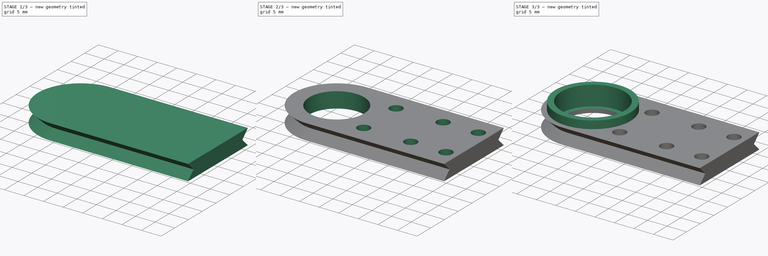
[diagram: build sequence overview — one tinted view per stage of 3, left to right]
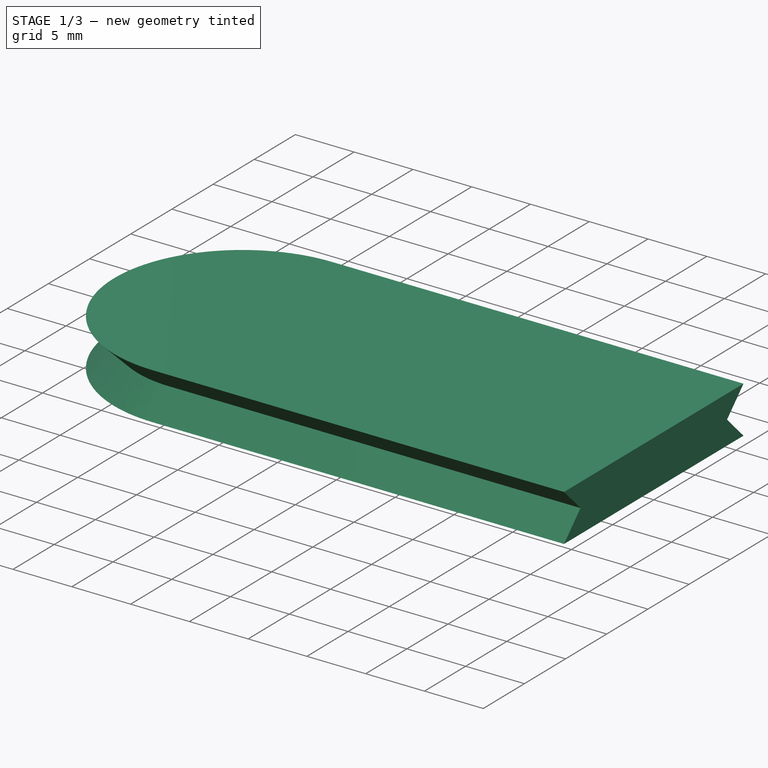
[diagram: stage 1 of 3 — iso view after this stage's code; geometry added in this stage tinted green]
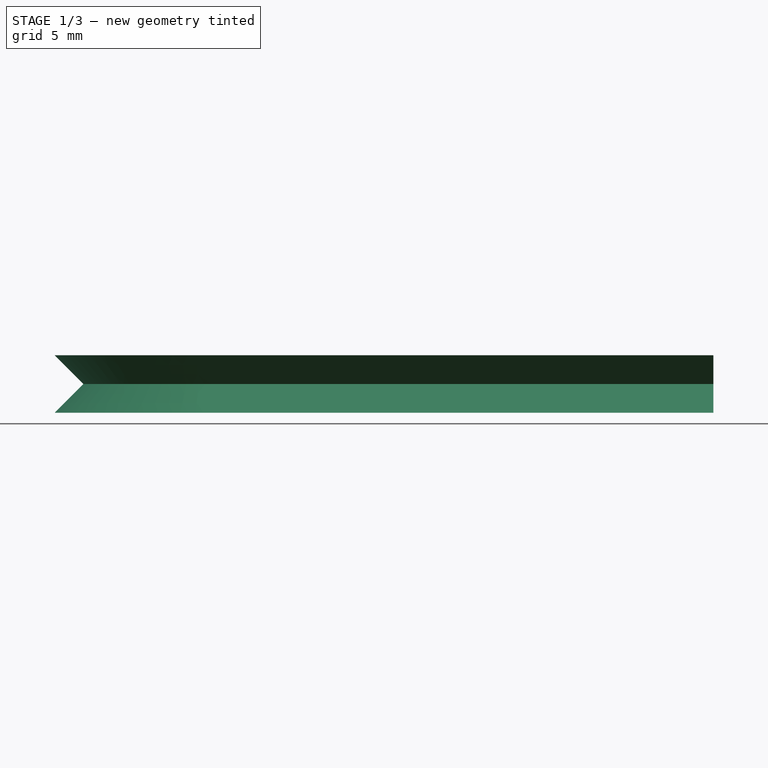
[diagram: stage 1 of 3 — front view after this stage's code; geometry added in this stage tinted green]
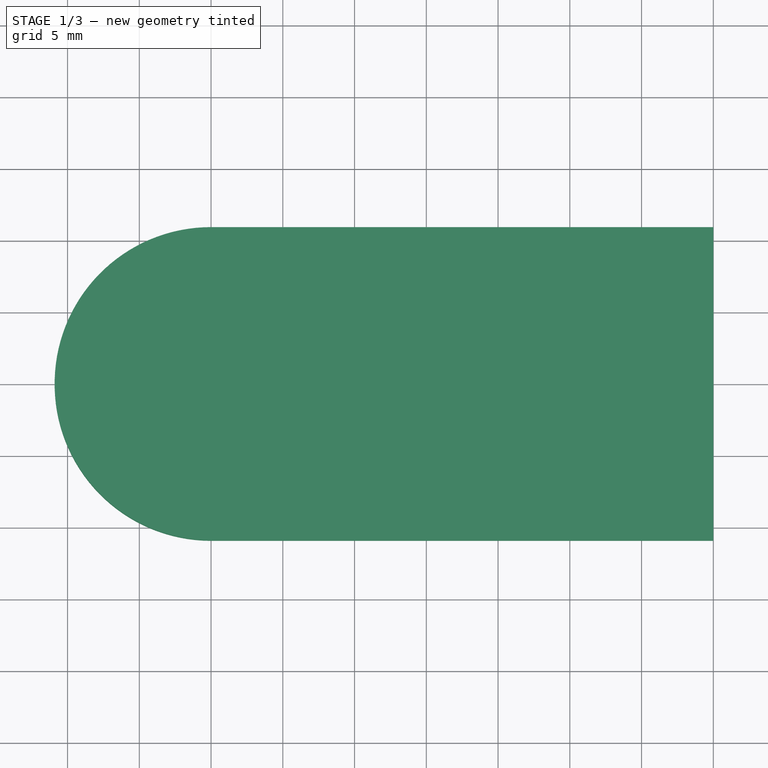
[diagram: stage 1 of 3 — top view after this stage's code; geometry added in this stage tinted green]
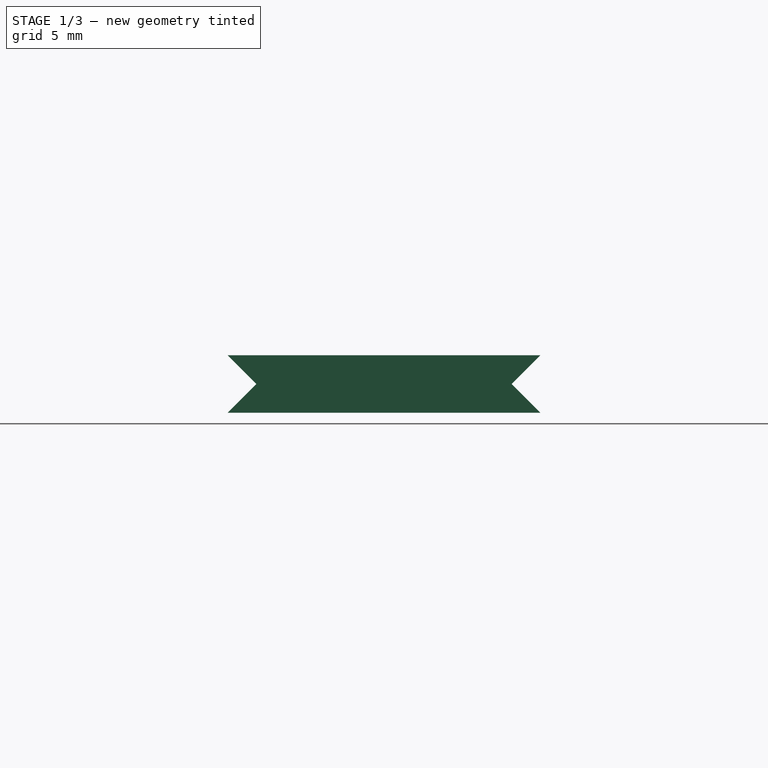
[diagram: stage 1 of 3 — right view after this stage's code; geometry added in this stage tinted green]
FCSTD DOCUMENT  (FreeCAD 0.18R14014 (Git))
Label: IdlerPart_625zz
License: All rights reserved
LicenseURL: http://en.wikipedia.org/wiki/All_rights_reserved
objects: Sketcher::SketchObject×8, PartDesign::Pocket×3, PartDesign::Pad×2, PartDesign::Plane×2, PartDesign::AdditiveLoft×1, PartDesign::Body×1, App::Part×1
note: 23 computed .brp shape members not serialized (recipe doc carries the construction recipe); baked Part::Feature solids carry a one-line shape summary decoded from their .brp

FEATURE [Sketcher::SketchObject] Sketch  label="IB_BaseSketch"
  MapMode = 5
  Placement = pos=(0,0,0) rot=(0.57735,0.57735,0.57735;2.0944rad)
  Support = -> [YZ_Plane001]
  sketch-geometry (8):
    g0: LineSegment StartX=0 StartY=2 StartZ=0 EndX=-10.9 EndY=2 EndZ=0
    g1: LineSegment StartX=0 StartY=2 StartZ=0 EndX=10.9 EndY=2 EndZ=0
    g2: LineSegment StartX=10.9 StartY=2 StartZ=0 EndX=8.9 EndY=0 EndZ=0
    g3: LineSegment StartX=8.9 StartY=0 StartZ=0 EndX=10.9 EndY=-2 EndZ=0
    g4: LineSegment StartX=10.9 StartY=-2 StartZ=0 EndX=0 EndY=-2 EndZ=0
    g5: LineSegment StartX=0 StartY=-2 StartZ=0 EndX=-10.9 EndY=-2 EndZ=0
    g6: LineSegment StartX=-10.9 StartY=-2 StartZ=0 EndX=-8.9 EndY=0 EndZ=0
    g7: LineSegment StartX=-8.9 StartY=0 StartZ=0 EndX=-10.9 EndY=2 EndZ=0
  constraints (20):
    c: PointOnObject(g0,g-2)
    c: Horizontal(g0)
    c: Coincident(g1,g0)
    c: Horizontal(g1)
    c: Coincident(g2,g1)
    c: PointOnObject(g2,g-1)
    c: Coincident(g3,g2)
    c: Coincident(g4,g3)
    c: Coincident(g6,g5)
    c: Coincident(g7,g6)
    c: Coincident(g7,g0)
    c: Coincident(g4,g5)
    c: Symmetric(g4,g0,g-1)
    c: Symmetric(g1,g3,g-1)
    c: Symmetric(g0,g5,g-1)
    c: Symmetric(g2,g6,g-2)
    c: Distance(g2,g6) = 17.8
    c: Distance(g1,g0) = 21.8
    c: Distance(g0,g5) = 4
    c: Equal(g0,g1)
FEATURE [PartDesign::Pad] Pad  label="IB_BasePad"
  Length = 35
  Length2 = 100
  Placement = pos=(0,0,0) rot=(0.57735,0.57735,0.57735;2.0944rad)
  Profile = -> Sketch
  Type = 0
FEATURE [Sketcher::SketchObject] Sketch001  label="IB_ClipCenterSketch"
  ExternalGeometry = -> [Sketch]
  MapMode = 5
  Support = -> [XY_Plane001]
  sketch-geometry (2):
    g0: ArcOfCircle CenterX=0 CenterY=0 CenterZ=0 NormalX=0 NormalY=0 NormalZ=1 AngleXU=0 Radius=8.9 StartAngle=1.5708 EndAngle=4.71239
    g1: LineSegment StartX=0 StartY=8.9 StartZ=0 EndX=0 EndY=-8.9 EndZ=0
  constraints (5):
    c: Coincident(g0,g-1)
    c: Coincident(g0,g-3)
    c: PointOnObject(g0,g-2)
    c: Coincident(g1,g0)
    c: Coincident(g1,g0)
FEATURE [PartDesign::Plane] DatumPlane  label="IB_TopPlane"
  AttachmentOffset = pos=(0,0,2) rot=(0,0,1;0rad)
  MapMode = 5
  Placement = pos=(0,0,2) rot=(0,0,1;0rad)
  Support = -> [XY_Plane001]
FEATURE [PartDesign::Plane] DatumPlane001  label="IB_BottomPlane"
  AttachmentOffset = pos=(0,0,-2) rot=(0,0,1;0rad)
  MapMode = 5
  Placement = pos=(0,0,-2) rot=(0,0,1;0rad)
  Support = -> [XY_Plane001]
FEATURE [Sketcher::SketchObject] Sketch002  label="IB_ClipTopSketch"
  ExternalGeometry = -> [Sketch]
  MapMode = 5
  Placement = pos=(0,0,2) rot=(0,0,1;0rad)
  Support = -> [DatumPlane]
  sketch-geometry (2):
    g0: ArcOfCircle CenterX=0 CenterY=0 CenterZ=0 NormalX=0 NormalY=0 NormalZ=1 AngleXU=0 Radius=10.9 StartAngle=1.5708 EndAngle=4.71239
    g1: LineSegment StartX=0 StartY=10.9 StartZ=0 EndX=0 EndY=-10.9 EndZ=0
  constraints (5):
    c: Coincident(g0,g-1)
    c: Coincident(g0,g-3)
    c: PointOnObject(g0,g-2)
    c: Coincident(g1,g0)
    c: Coincident(g1,g0)
FEATURE [Sketcher::SketchObject] Sketch003  label="IB_ClipBottomSketch"
  ExternalGeometry = -> [Sketch]
  MapMode = 5
  Placement = pos=(0,0,-2) rot=(0,0,1;0rad)
  Support = -> [DatumPlane001]
  sketch-geometry (2):
    g0: ArcOfCircle CenterX=0 CenterY=0 CenterZ=0 NormalX=0 NormalY=0 NormalZ=1 AngleXU=0 Radius=10.9 StartAngle=1.5708 EndAngle=4.71239
    g1: LineSegment StartX=0 StartY=10.9 StartZ=0 EndX=0 EndY=-10.9 EndZ=0
  constraints (5):
    c: Coincident(g0,g-3)
    c: PointOnObject(g0,g-2)
    c: Coincident(g0,g-1)
    c: Coincident(g1,g0)
    c: Coincident(g1,g0)
FEATURE [PartDesign::AdditiveLoft] AdditiveLoft  label="ClipLoft"
  BaseFeature = -> Pad
  Closed = false
  Placement = pos=(0,0,0) rot=(0.57735,0.57735,0.57735;2.0944rad)
  Profile = -> Sketch002
  Ruled = true
  Sections = -> [Sketch001,Sketch003]
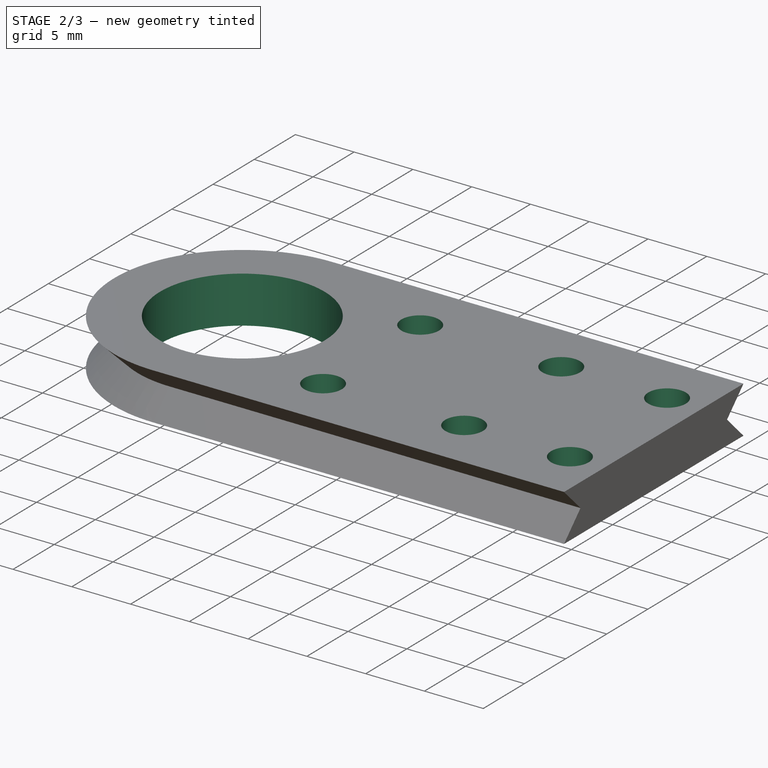
[diagram: stage 2 of 3 — iso view after this stage's code; geometry added in this stage tinted green]
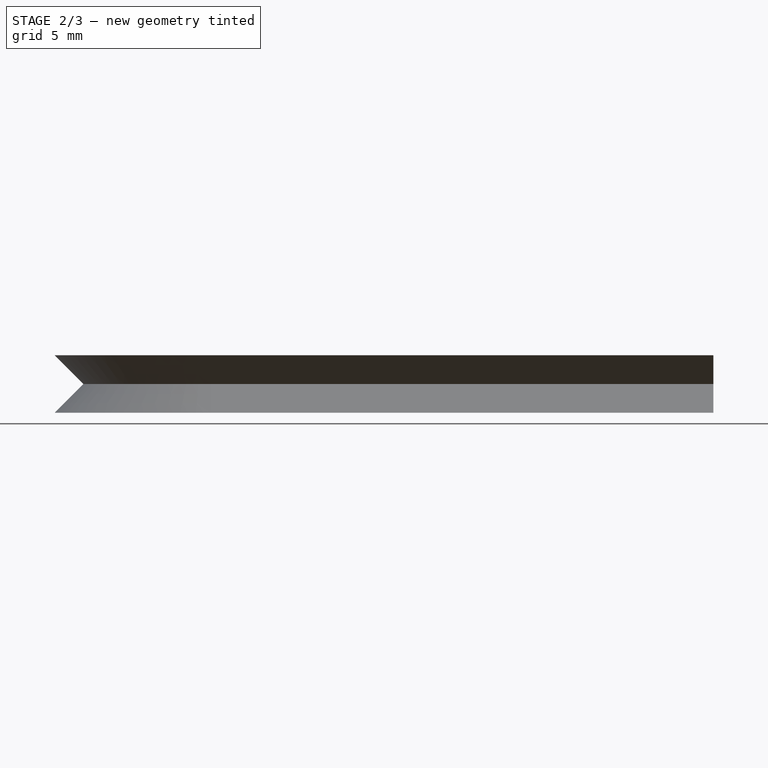
[diagram: stage 2 of 3 — front view after this stage's code; geometry added in this stage tinted green]
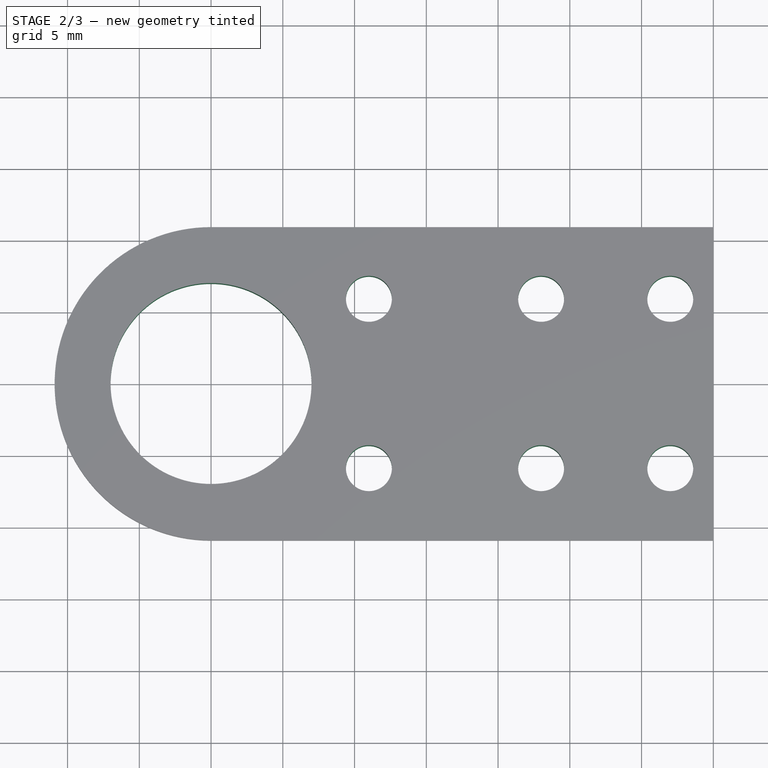
[diagram: stage 2 of 3 — top view after this stage's code; geometry added in this stage tinted green]
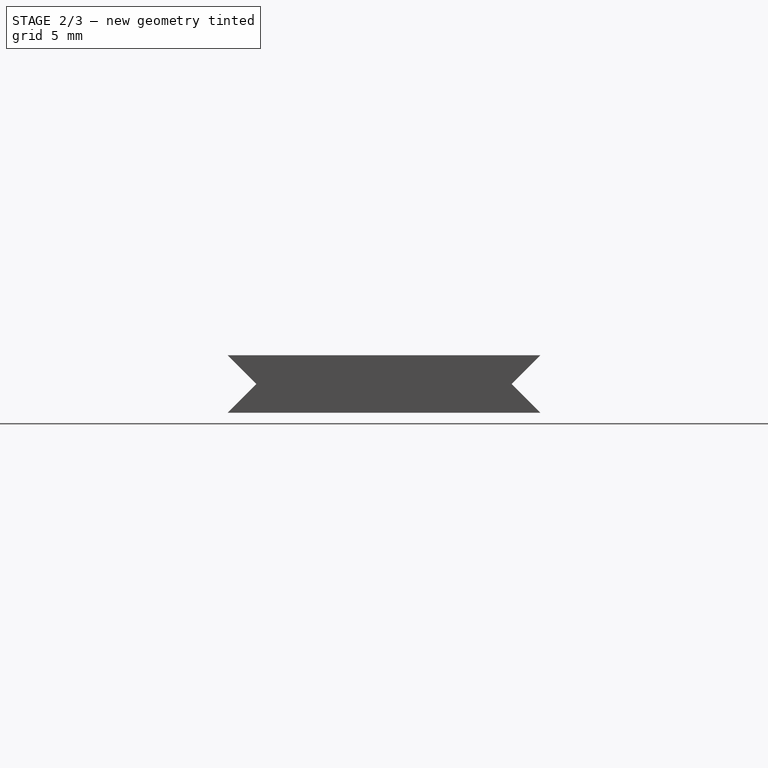
[diagram: stage 2 of 3 — right view after this stage's code; geometry added in this stage tinted green]
FEATURE [Sketcher::SketchObject] Sketch004  label="ScrewsSketch"
  ExternalGeometry = -> [Sketch]
  MapMode = 5
  Support = -> [XY_Plane001]
  sketch-geometry (11):
    g0: LineSegment [constr] StartX=1e-12 StartY=8.9 StartZ=0 EndX=32 EndY=8.9 EndZ=0
    g1: LineSegment [constr] StartX=32 StartY=8.9 StartZ=0 EndX=35 EndY=8.9 EndZ=0
    g2: LineSegment [constr] StartX=32 StartY=8.9 StartZ=0 EndX=32 EndY=5.9 EndZ=0
    g3: Circle CenterX=32 CenterY=5.9 CenterZ=0 NormalX=0 NormalY=0 NormalZ=1 AngleXU=0 Radius=1.6
    g4: Circle CenterX=32 CenterY=-5.9 CenterZ=0 NormalX=0 NormalY=0 NormalZ=1 AngleXU=0 Radius=1.6
    g5: LineSegment [constr] StartX=32 StartY=5.9 StartZ=0 EndX=23 EndY=5.9 EndZ=0
    g6: LineSegment [constr] StartX=23 StartY=5.9 StartZ=0 EndX=11 EndY=5.9 EndZ=0
    g7: Circle CenterX=23 CenterY=5.9 CenterZ=0 NormalX=0 NormalY=0 NormalZ=1 AngleXU=0 Radius=1.6
    g8: Circle CenterX=11 CenterY=5.9 CenterZ=0 NormalX=0 NormalY=0 NormalZ=1 AngleXU=0 Radius=1.6
    g9: Circle CenterX=23 CenterY=-5.9 CenterZ=0 NormalX=0 NormalY=0 NormalZ=1 AngleXU=0 Radius=1.6
    g10: Circle CenterX=11 CenterY=-5.9 CenterZ=0 NormalX=0 NormalY=0 NormalZ=1 AngleXU=0 Radius=1.6
  constraints (27):
    c: Coincident(g0,g-3)
    c: Horizontal(g0)
    c: Coincident(g1,g0)
    c: Horizontal(g1)
    c: Coincident(g2,g0)
    c: Vertical(g2)
    c: Equal(g2,g1)
    c: Distance(g1) = 3
    c: Coincident(g3,g2)
    c: Symmetric(g4,g3,g-1)
    c: Equal(g4,g3)
    c: Radius(g3) = 1.6
    c: Distance(g0) = 32
    c: Horizontal(g5)
    c: Coincident(g6,g5)
    c: Horizontal(g6)
    c: Distance(g5) = 9
    c: Coincident(g5,g3)
    c: Coincident(g7,g5)
    c: Distance(g6) = 12
    c: Coincident(g8,g6)
    c: Symmetric(g9,g7,g-1)
    c: Symmetric(g8,g10,g-1)
    c: Equal(g7,g8)
    c: Equal(g8,g3)
    c: Equal(g3,g9)
    c: Equal(g9,g10)
FEATURE [PartDesign::Pocket] Pocket  label="ScrewsPocket"
  BaseFeature = -> AdditiveLoft
  Length = 5
  Length2 = 100
  Midplane = true
  Placement = pos=(0,0,0) rot=(0.57735,0.57735,0.57735;2.0944rad)
  Profile = -> Sketch004
  Type = 1
FEATURE [Sketcher::SketchObject] Sketch005  label="BearingClipSketch"
  MapMode = 5
  Support = -> [XY_Plane001]
  sketch-geometry (1):
    g0: Circle CenterX=0 CenterY=0 CenterZ=0 NormalX=0 NormalY=0 NormalZ=1 AngleXU=0 Radius=8.15
  constraints (2):
    c: Coincident(g0,g-1)
    c: Radius(g0) = 8.15
FEATURE [Sketcher::SketchObject] Sketch006  label="BearingHoleSketch"
  MapMode = 5
  Support = -> [XY_Plane001]
  sketch-geometry (1):
    g0: Circle CenterX=0 CenterY=0 CenterZ=0 NormalX=0 NormalY=0 NormalZ=1 AngleXU=0 Radius=7
  constraints (2):
    c: Coincident(g0,g-1)
    c: Radius(g0) = 7
FEATURE [PartDesign::Pocket] Pocket001  label="BearingHolePocket"
  BaseFeature = -> Pocket
  Length = 5
  Length2 = 100
  Midplane = true
  Placement = pos=(0,0,0) rot=(0.57735,0.57735,0.57735;2.0944rad)
  Profile = -> Sketch006
  Type = 1
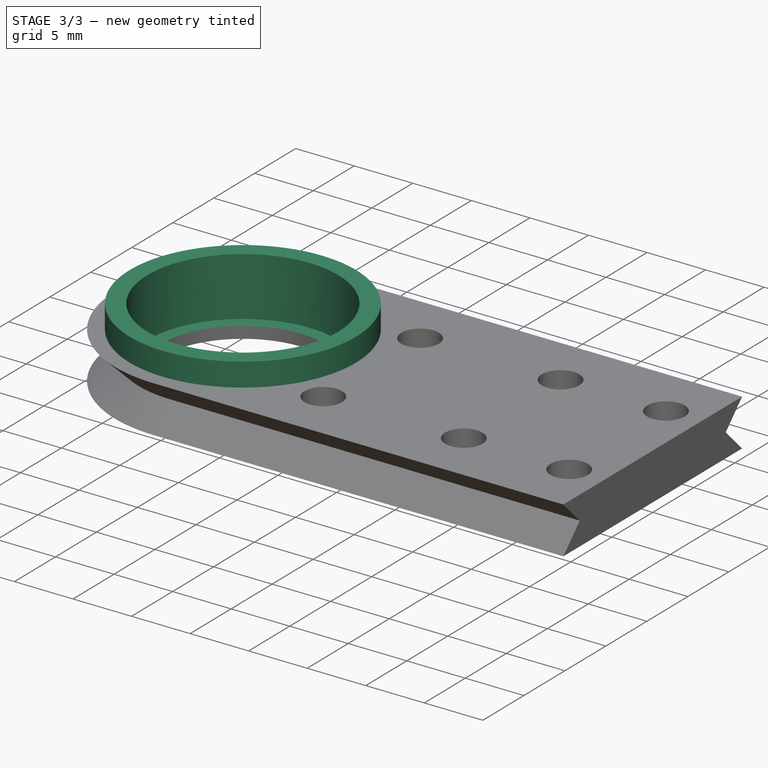
[diagram: stage 3 of 3 — iso view after this stage's code; geometry added in this stage tinted green]
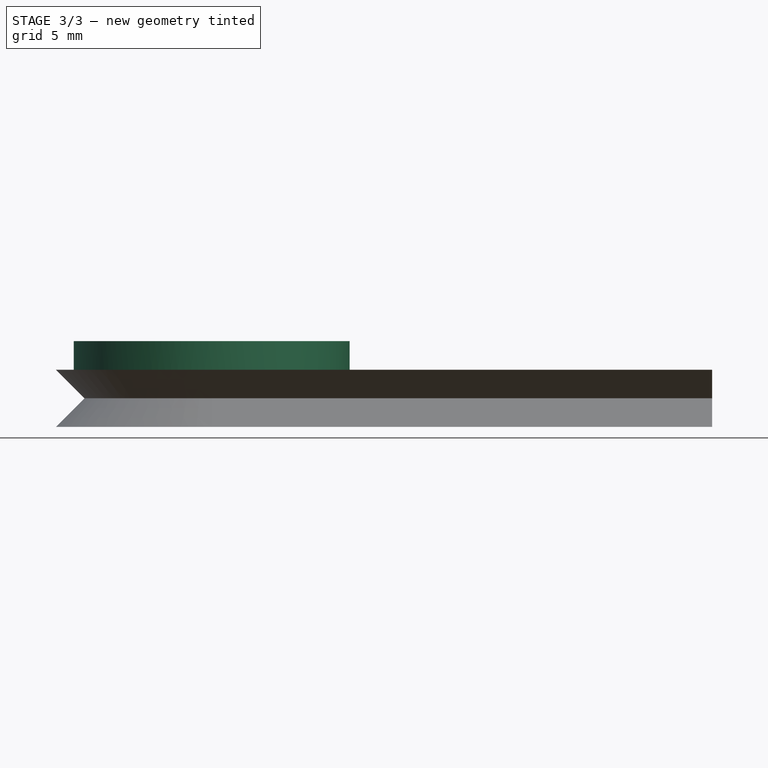
[diagram: stage 3 of 3 — front view after this stage's code; geometry added in this stage tinted green]
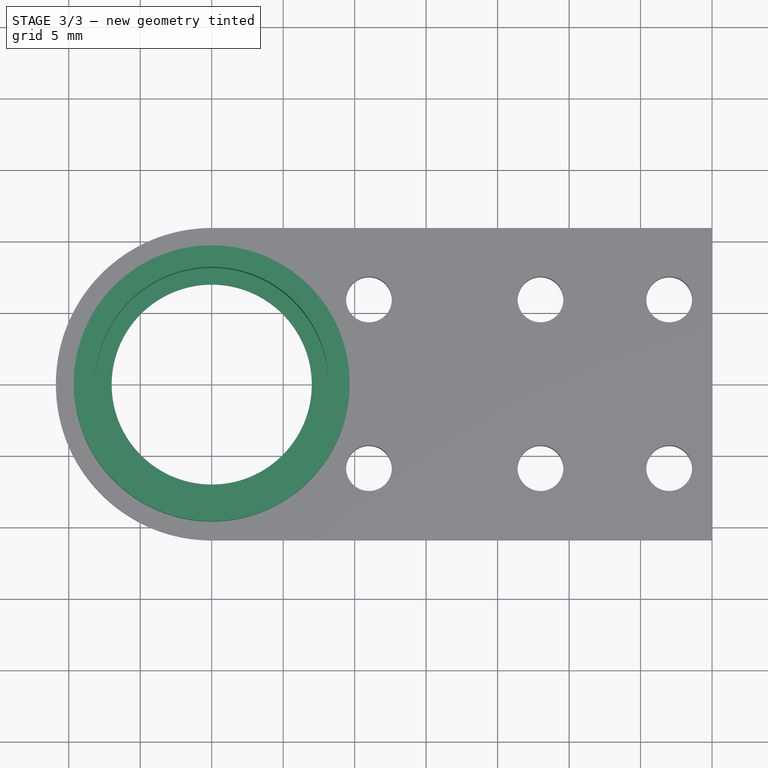
[diagram: stage 3 of 3 — top view after this stage's code; geometry added in this stage tinted green]
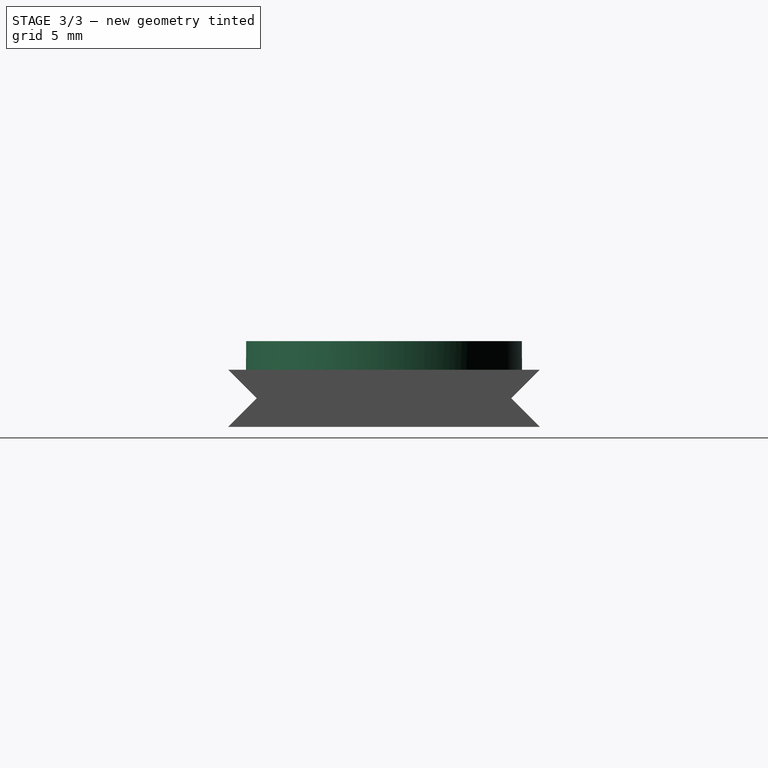
[diagram: stage 3 of 3 — right view after this stage's code; geometry added in this stage tinted green]
FEATURE [PartDesign::Pocket] Pocket002  label="BearingClipPocket"
  BaseFeature = -> Pocket001
  Length = 1
  Length2 = 100
  Midplane = true
  Placement = pos=(0,0,0) rot=(0.57735,0.57735,0.57735;2.0944rad)
  Profile = -> Sketch005
  Type = 4
FEATURE [Sketcher::SketchObject] Sketch007  label="BearingLedgeSketch"
  ExternalGeometry = -> [Sketch005]
  MapMode = 5
  Placement = pos=(0,0,2) rot=(0,0,1;0rad)
  Support = -> [DatumPlane]
  sketch-geometry (3):
    g0: Circle CenterX=0 CenterY=0 CenterZ=0 NormalX=0 NormalY=0 NormalZ=1 AngleXU=0 Radius=8.15
    g1: Circle CenterX=0 CenterY=0 CenterZ=0 NormalX=0 NormalY=0 NormalZ=1 AngleXU=0 Radius=9.65
    g2: LineSegment [constr] StartX=8.15 StartY=0 StartZ=0 EndX=9.65 EndY=0 EndZ=0
  constraints (8):
    c: Coincident(g0,g-1)
    c: Equal(g0,g-3)
    c: Coincident(g1,g0)
    c: PointOnObject(g2,g-1)
    c: PointOnObject(g2,g-1)
    c: PointOnObject(g2,g0)
    c: PointOnObject(g2,g1)
    c: Distance(g2) = 1.5
FEATURE [PartDesign::Pad] Pad001  label="BearingLedgePad"
  BaseFeature = -> Pocket002
  Length = 2
  Length2 = 100
  Placement = pos=(0,0,0) rot=(0.57735,0.57735,0.57735;2.0944rad)
  Profile = -> Sketch007
  Type = 0
FEATURE [PartDesign::Body] Body  label="IdlerBody"
  Group = -> [Sketch,Pad,Sketch001,DatumPlane,DatumPlane001,Sketch002,Sketch003,AdditiveLoft,Sketch004,Pocket,Sketch005,Sketch006,Pocket001,Pocket002,Sketch007,Pad001]
  Origin = -> Origin001
  Tip = -> Pad001
FEATURE [App::Part] Part  label="IdlerPart"
  Group = -> [Body]
  License = CC BY 3.0
  LicenseURL = http://creativecommons.org/licenses/by/3.0/
  Origin = -> Origin
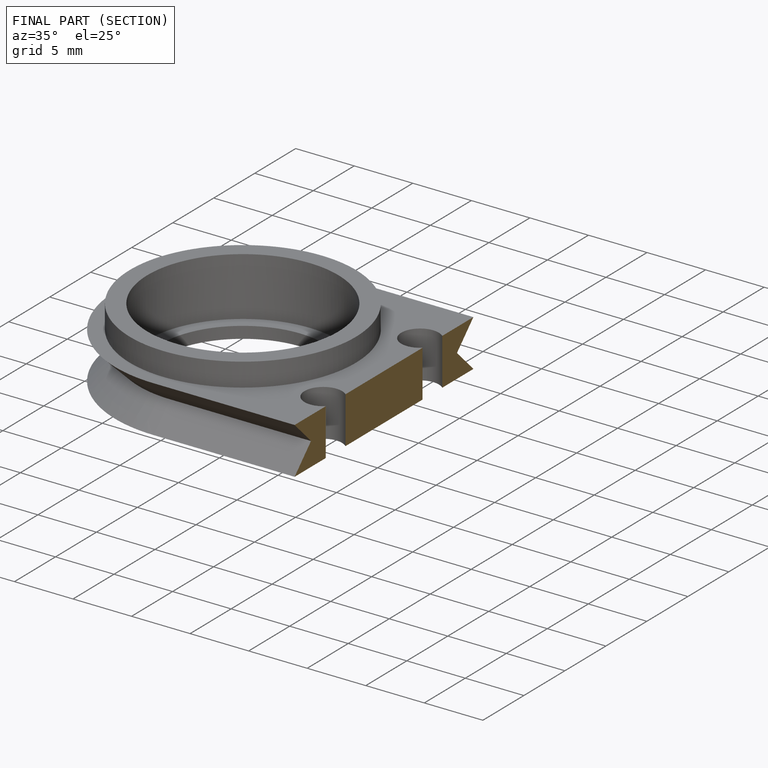
[diagram: finished part — half-section view (interior)]
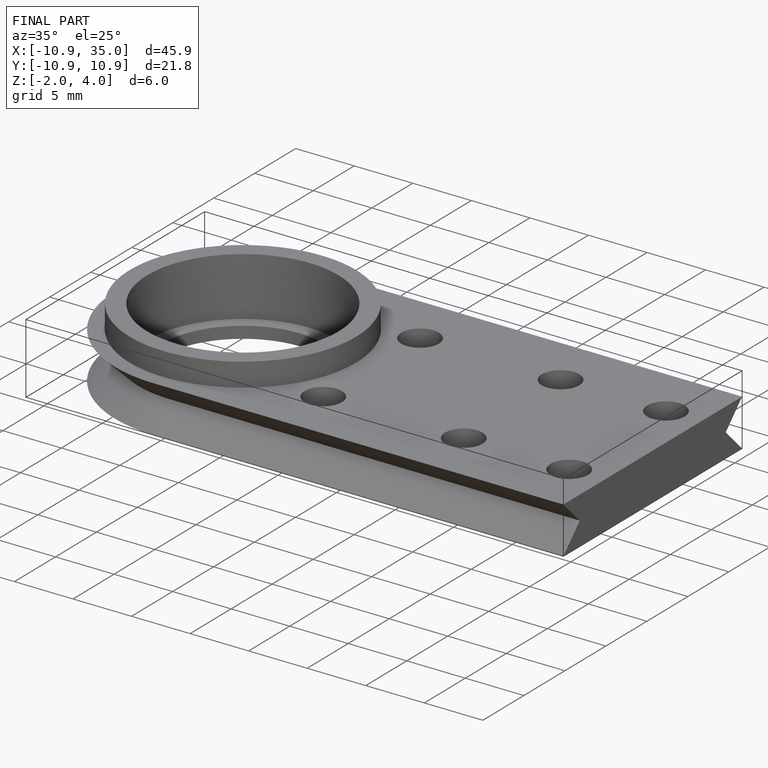
[diagram: finished part — iso view with bounding-box wireframe]
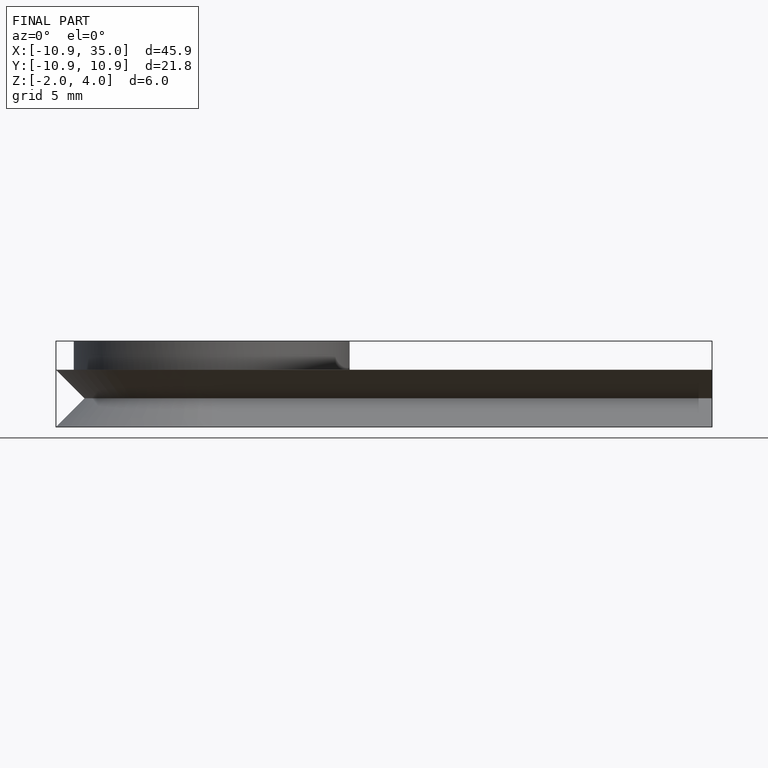
[diagram: finished part — front view with bounding-box wireframe]
